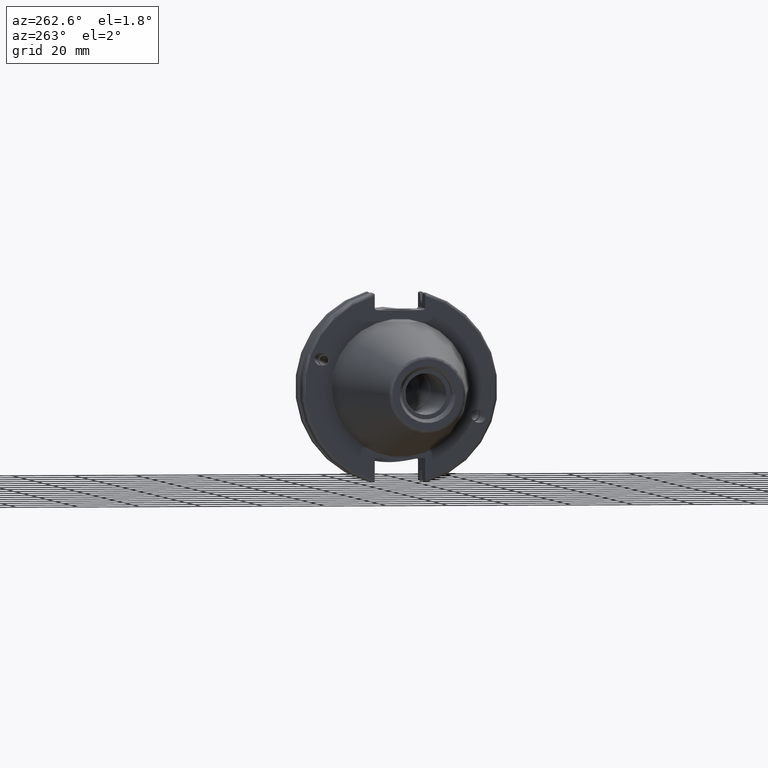
[diagram: clean part render]
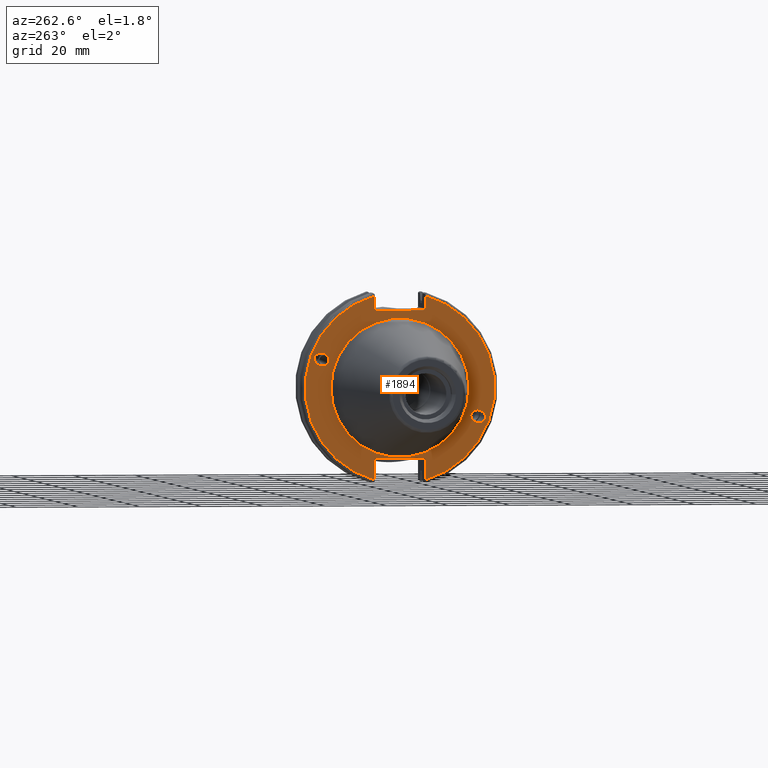
[diagram: same view with one face highlighted and labeled with its STEP entity id]
A machine part, auxiliary view. The second image highlights one B-rep face of the part: STEP entity #1894.
In plain terms, the highlighted planar face has unit normal (-1, 0, 0).
Its self-contained STEP definition (entity closure, byte-faithful):
#39=ELLIPSE('',#2090,2.4415491775229,1.99999999999999);
#48=ELLIPSE('',#2134,2.4415491775229,1.99999999999999);
#62=PLANE('',#2143);
#112=FACE_BOUND('',#366,.T.);
#113=FACE_BOUND('',#367,.T.);
#114=FACE_BOUND('',#368,.T.);
#249=FACE_OUTER_BOUND('',#365,.T.);
#365=EDGE_LOOP('',(#1577,#1578,#1579,#1580,#1581,#1582,#1583,#1584,#1585,
#1586));
#366=EDGE_LOOP('',(#1587));
#367=EDGE_LOOP('',(#1588));
#368=EDGE_LOOP('',(#1589));
#469=LINE('',#3496,#567);
#470=LINE('',#3500,#568);
#471=LINE('',#3502,#569);
#472=LINE('',#3504,#570);
#473=LINE('',#3506,#571);
#474=LINE('',#3508,#572);
#475=LINE('',#3512,#573);
#476=LINE('',#3513,#574);
#567=VECTOR('',#2637,10.);
#568=VECTOR('',#2640,10.);
#569=VECTOR('',#2641,10.);
#570=VECTOR('',#2642,10.);
#571=VECTOR('',#2643,10.);
#572=VECTOR('',#2644,10.);
#573=VECTOR('',#2647,10.);
#574=VECTOR('',#2648,10.);
#707=CIRCLE('',#2140,22.3960257175388);
#710=CIRCLE('',#2144,30.75);
#711=CIRCLE('',#2145,30.75);
#831=VERTEX_POINT('',#3273);
#872=VERTEX_POINT('',#3476);
#875=VERTEX_POINT('',#3488);
#877=VERTEX_POINT('',#3494);
#878=VERTEX_POINT('',#3495);
#879=VERTEX_POINT('',#3497);
#880=VERTEX_POINT('',#3499);
#881=VERTEX_POINT('',#3501);
#882=VERTEX_POINT('',#3503);
#883=VERTEX_POINT('',#3505);
#884=VERTEX_POINT('',#3507);
#885=VERTEX_POINT('',#3509);
#886=VERTEX_POINT('',#3511);
#1065=EDGE_CURVE('',#831,#831,#39,.T.);
#1122=EDGE_CURVE('',#872,#872,#48,.T.);
#1127=EDGE_CURVE('',#875,#875,#707,.T.);
#1130=EDGE_CURVE('',#877,#878,#469,.T.);
#1131=EDGE_CURVE('',#879,#878,#710,.T.);
#1132=EDGE_CURVE('',#879,#880,#470,.T.);
#1133=EDGE_CURVE('',#881,#880,#471,.T.);
#1134=EDGE_CURVE('',#881,#882,#472,.T.);
#1135=EDGE_CURVE('',#883,#882,#473,.T.);
#1136=EDGE_CURVE('',#883,#884,#474,.T.);
#1137=EDGE_CURVE('',#885,#884,#711,.T.);
#1138=EDGE_CURVE('',#885,#886,#475,.T.);
#1139=EDGE_CURVE('',#886,#877,#476,.T.);
#1577=ORIENTED_EDGE('',*,*,#1130,.T.);
#1578=ORIENTED_EDGE('',*,*,#1131,.F.);
#1579=ORIENTED_EDGE('',*,*,#1132,.T.);
#1580=ORIENTED_EDGE('',*,*,#1133,.F.);
#1581=ORIENTED_EDGE('',*,*,#1134,.T.);
#1582=ORIENTED_EDGE('',*,*,#1135,.F.);
#1583=ORIENTED_EDGE('',*,*,#1136,.T.);
#1584=ORIENTED_EDGE('',*,*,#1137,.F.);
#1585=ORIENTED_EDGE('',*,*,#1138,.T.);
#1586=ORIENTED_EDGE('',*,*,#1139,.T.);
#1587=ORIENTED_EDGE('',*,*,#1065,.T.);
#1588=ORIENTED_EDGE('',*,*,#1122,.T.);
#1589=ORIENTED_EDGE('',*,*,#1127,.F.);
#1894=ADVANCED_FACE('',(#249,#112,#113,#114),#62,.T.);
#2090=AXIS2_PLACEMENT_3D('',#3275,#2511,#2512);
#2134=AXIS2_PLACEMENT_3D('',#3478,#2615,#2616);
#2140=AXIS2_PLACEMENT_3D('',#3489,#2629,#2630);
#2143=AXIS2_PLACEMENT_3D('',#3493,#2635,#2636);
#2144=AXIS2_PLACEMENT_3D('',#3498,#2638,#2639);
#2145=AXIS2_PLACEMENT_3D('',#3510,#2645,#2646);
#2511=DIRECTION('center_axis',(1.,0.,0.));
#2512=DIRECTION('ref_axis',(0.,-0.939692620785908,-0.342020143325669));
#2615=DIRECTION('center_axis',(1.,0.,0.));
#2616=DIRECTION('ref_axis',(0.,0.939692620785908,0.342020143325669));
#2629=DIRECTION('center_axis',(-1.,0.,0.));
#2630=DIRECTION('ref_axis',(0.,1.,-1.83190169812394E-16));
#2635=DIRECTION('center_axis',(-1.,0.,0.));
#2636=DIRECTION('ref_axis',(0.,0.,1.));
#2637=DIRECTION('',(0.,0.,-1.));
#2638=DIRECTION('center_axis',(1.,0.,0.));
#2639=DIRECTION('ref_axis',(0.,-1.,1.60812264967664E-16));
#2640=DIRECTION('',(0.,0.,-1.));
#2641=DIRECTION('',(0.,-0.70710678118655,0.707106781186545));
#2642=DIRECTION('',(0.,1.,0.));
#2643=DIRECTION('',(0.,-0.707106781186549,-0.707106781186546));
#2644=DIRECTION('',(0.,0.,1.));
#2645=DIRECTION('center_axis',(1.,0.,0.));
#2646=DIRECTION('ref_axis',(0.,1.,1.60812264967664E-16));
#2647=DIRECTION('',(0.,0.,1.));
#2648=DIRECTION('',(0.,-1.,0.));
#3273=CARTESIAN_POINT('',(0.999999999999999,-23.0773950158154,-8.39948487016));
#3275=CARTESIAN_POINT('Origin',(0.999999999999999,-25.3717007612195,-9.23454386979305));
#3476=CARTESIAN_POINT('',(0.999999999999999,23.0773950158154,8.39948487016001));
#3478=CARTESIAN_POINT('Origin',(0.999999999999999,25.3717007612195,9.23454386979306));
#3488=CARTESIAN_POINT('',(0.999999999999999,-22.3960257175388,6.84545387517925E-15));
#3489=CARTESIAN_POINT('Origin',(0.999999999999999,0.,0.));
#3493=CARTESIAN_POINT('Origin',(0.999999999999999,31.75,0.));
#3494=CARTESIAN_POINT('',(0.999999999999999,-8.19,-22.6));
#3495=CARTESIAN_POINT('',(0.999999999999999,-8.19,-29.6392712461019));
#3496=CARTESIAN_POINT('',(0.999999999999999,-8.19,-11.3));
#3497=CARTESIAN_POINT('',(0.999999999999999,-8.18999999999999,29.6392712461019));
#3498=CARTESIAN_POINT('Origin',(0.999999999999999,0.,0.));
#3499=CARTESIAN_POINT('',(0.999999999999999,-8.18999999999999,25.5));
#3500=CARTESIAN_POINT('',(0.999999999999999,-8.18999999999999,12.5));
#3501=CARTESIAN_POINT('',(0.999999999999999,-7.68999999999999,25.));
#3502=CARTESIAN_POINT('',(0.999999999999999,8.29500000000007,9.01500000000004));
#3503=CARTESIAN_POINT('',(0.999999999999999,7.69,25.));
#3504=CARTESIAN_POINT('',(0.999999999999999,15.875,25.));
#3505=CARTESIAN_POINT('',(0.999999999999999,8.19,25.5));
#3506=CARTESIAN_POINT('',(0.999999999999998,7.58000000000002,24.89));
#3507=CARTESIAN_POINT('',(0.999999999999999,8.19,29.6392712461019));
#3508=CARTESIAN_POINT('',(0.999999999999999,8.19,12.5));
#3509=CARTESIAN_POINT('',(0.999999999999999,8.18999999999999,-29.6392712461019));
#3510=CARTESIAN_POINT('Origin',(0.999999999999999,0.,0.));
#3511=CARTESIAN_POINT('',(0.999999999999999,8.19000000000001,-22.6));
#3512=CARTESIAN_POINT('',(0.999999999999999,8.19,-11.3));
#3513=CARTESIAN_POINT('',(0.999999999999999,15.875,-22.6));